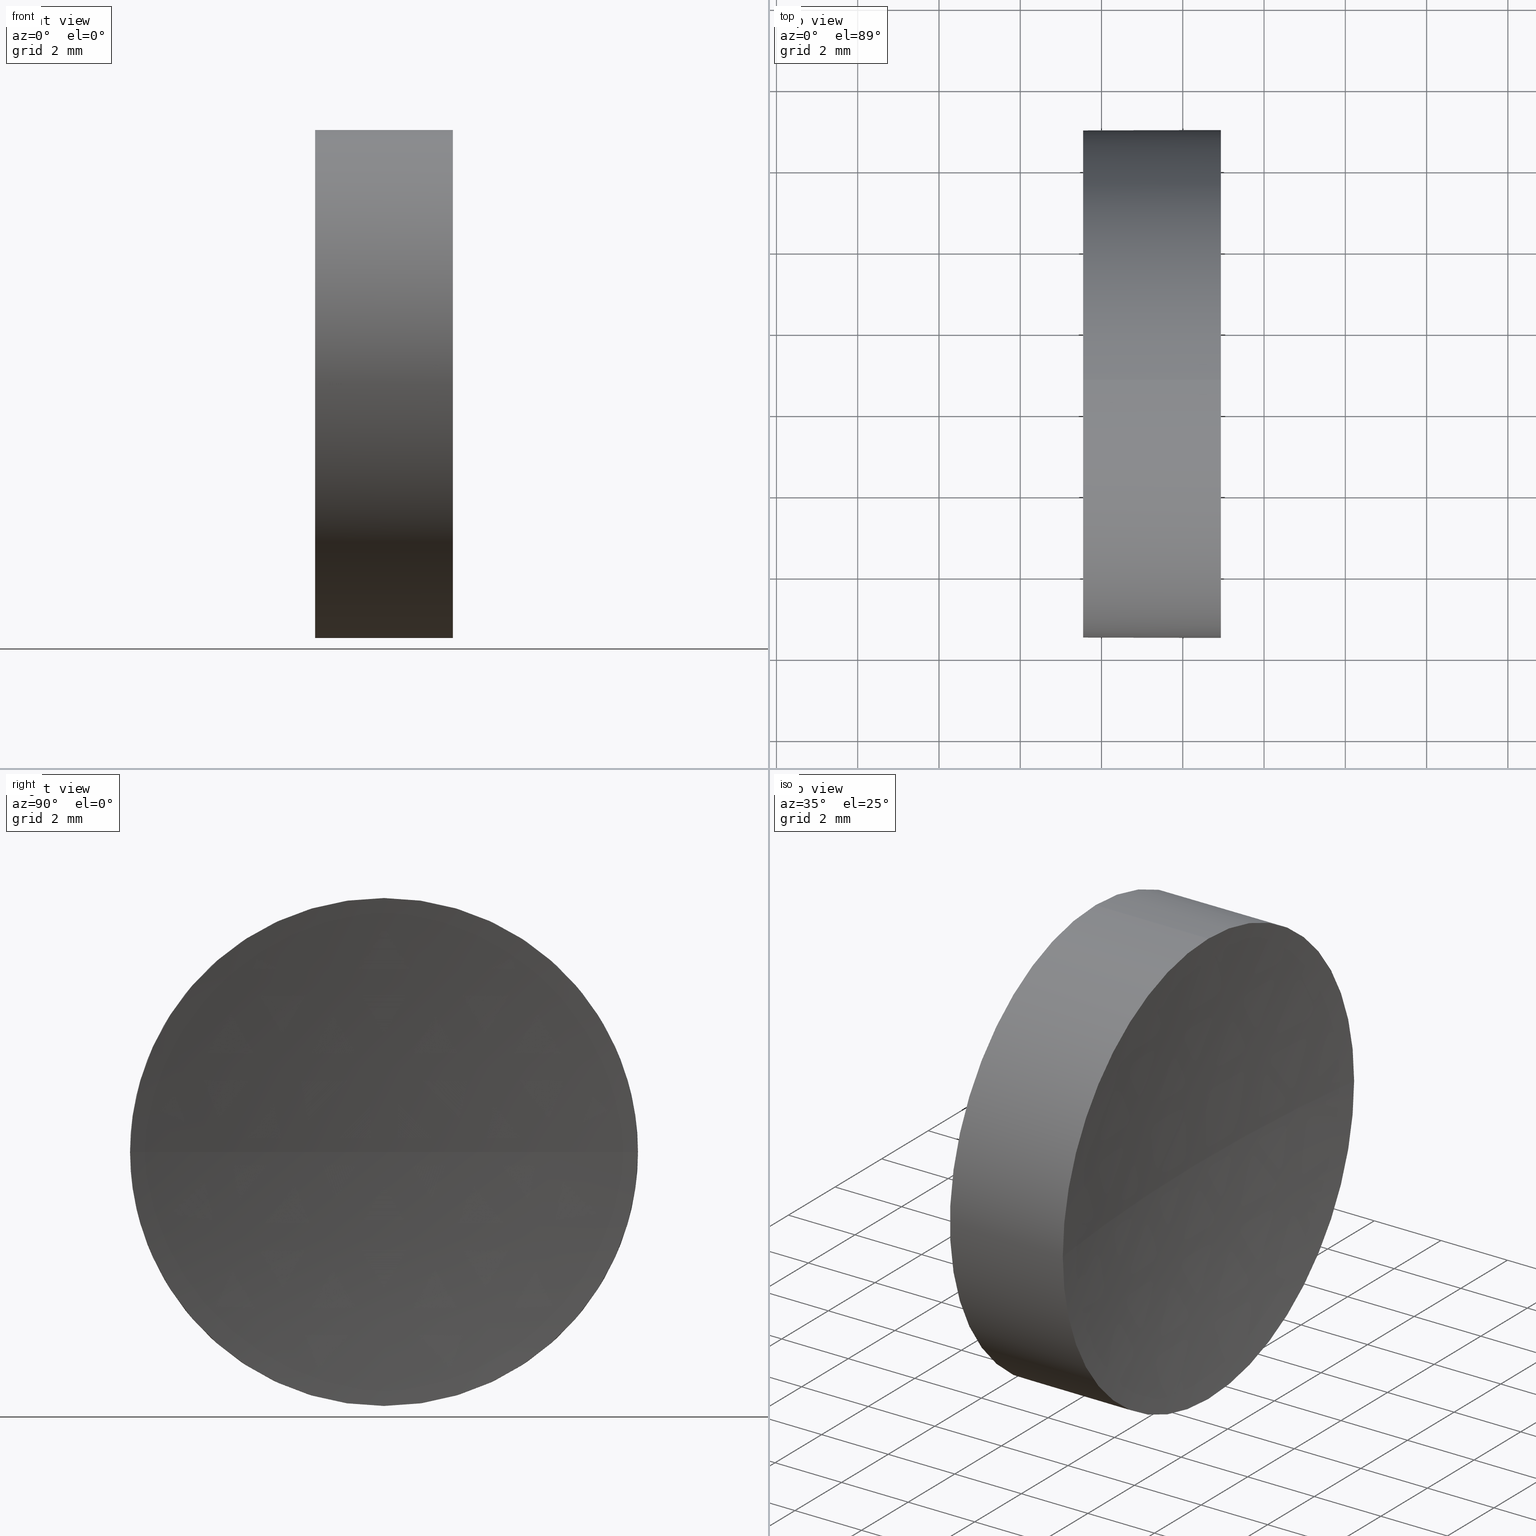
[diagram: canonical four-view strip — front | top / right | iso, engineering-drawing reading convention]
A machine part, canonical four-view strip (front | top / right | iso — engineering-drawing reading convention). The complete STEP part file that produces these views, byte-faithful:
ISO-10303-21;
HEADER;
FILE_DESCRIPTION (( 'STEP AP214' ),
    '1' );
FILE_NAME ('270004.STEP',
    '2019-07-22T02:27:28',
    ( '' ),
    ( '' ),
    'SwSTEP 2.0',
    'SolidWorks 2016',
    '' );
FILE_SCHEMA (( 'AUTOMOTIVE_DESIGN' ));
ENDSEC;

DATA;
#1 = CARTESIAN_POINT ( 'NONE',  ( 57.54632776745975800, 34.68901056168621700, 0.0000000000000000000 ) ) ;
#2 = CIRCLE ( 'NONE', #156, 6.250000000000005300 ) ;
#3 = APPLICATION_PROTOCOL_DEFINITION ( 'draft international standard', 'automotive_design', 1998, #41 ) ;
#4 = CIRCLE ( 'NONE', #84, 49.99999999999999300 ) ;
#5 = FACE_OUTER_BOUND ( 'NONE', #44, .T. ) ;
#6 = AXIS2_PLACEMENT_3D ( 'NONE', #70, #12, #141 ) ;
#7 = CARTESIAN_POINT ( 'NONE',  ( 57.54632776745975800, 34.68901056168621700, 6.249999999999998200 ) ) ;
#8 = VERTEX_POINT ( 'NONE', #180 ) ;
#9 = CARTESIAN_POINT ( 'NONE',  ( 60.93849051950596200, 40.93901056168623100, 7.654042494670954600E-016 ) ) ;
#10 = FILL_AREA_STYLE_COLOUR ( '', #131 ) ;
#11 = CARTESIAN_POINT ( 'NONE',  ( 0.0000000000000000000, 0.0000000000000000000, 0.0000000000000000000 ) ) ;
#12 = DIRECTION ( 'NONE',  ( 0.0000000000000000000, 0.0000000000000000000, 1.000000000000000000 ) ) ;
#13 = ORIENTED_EDGE ( 'NONE', *, *, #37, .F. ) ;
#14 = ORIENTED_EDGE ( 'NONE', *, *, #107, .T. ) ;
#15 = SURFACE_STYLE_FILL_AREA ( #126 ) ;
#16 = ORIENTED_EDGE ( 'NONE', *, *, #105, .T. ) ;
#17 = ORIENTED_EDGE ( 'NONE', *, *, #37, .T. ) ;
#18 = EDGE_CURVE ( 'NONE', #78, #8, #68, .T. ) ;
#19 = DIRECTION ( 'NONE',  ( 0.0000000000000000000, -1.000000000000000000, -1.224646799147353200E-016 ) ) ;
#20 = ORIENTED_EDGE ( 'NONE', *, *, #29, .T. ) ;
#21 = CARTESIAN_POINT ( 'NONE',  ( 57.54632776745975800, 34.68901056168621700, -6.249999999999998200 ) ) ;
#22 = DIRECTION ( 'NONE',  ( 0.0000000000000000000, 0.0000000000000000000, 1.000000000000000000 ) ) ;
#23 = DIRECTION ( 'NONE',  ( -1.000000000000000000, -0.0000000000000000000, -0.0000000000000000000 ) ) ;
#24 = AXIS2_PLACEMENT_3D ( 'NONE', #181, #152, #179 ) ;
#25 = DIRECTION ( 'NONE',  ( -1.000000000000000000, -0.0000000000000000000, -0.0000000000000000000 ) ) ;
#26 = DIRECTION ( 'NONE',  ( -1.000000000000000000, -0.0000000000000000000, -0.0000000000000000000 ) ) ;
#27 = COLOUR_RGB ( '',1.000000000000000000, 1.000000000000000000, 1.000000000000000000 ) ;
#28 = EDGE_LOOP ( 'NONE', ( #58, #91, #139, #57 ) ) ;
#29 = EDGE_CURVE ( 'NONE', #104, #31, #90, .T. ) ;
#30 = EDGE_CURVE ( 'NONE', #78, #94, #138, .T. ) ;
#31 = VERTEX_POINT ( 'NONE', #21 ) ;
#32 = ORIENTED_EDGE ( 'NONE', *, *, #30, .F. ) ;
#33 = AXIS2_PLACEMENT_3D ( 'NONE', #86, #25, #55 ) ;
#34 = CARTESIAN_POINT ( 'NONE',  ( 54.49257150108255100, 34.68901056168621700, 6.250000000000001800 ) ) ;
#35 = CARTESIAN_POINT ( 'NONE',  ( 54.49257150108255100, 34.68901056168621700, -6.250000000000001800 ) ) ;
#36 =( LENGTH_UNIT ( ) NAMED_UNIT ( * ) SI_UNIT ( .MILLI., .METRE. ) );
#37 = EDGE_CURVE ( 'NONE', #94, #66, #168, .T. ) ;
#38 = DIRECTION ( 'NONE',  ( -1.000000000000000000, -0.0000000000000000000, -0.0000000000000000000 ) ) ;
#39 = CIRCLE ( 'NONE', #45, 6.249999999999998200 ) ;
#40 = DIRECTION ( 'NONE',  ( 0.0000000000000000000, 0.0000000000000000000, 1.000000000000000000 ) ) ;
#41 = APPLICATION_CONTEXT ( 'automotive_design' ) ;
#42 = CIRCLE ( 'NONE', #33, 6.250000000000005300 ) ;
#43 = PRODUCT_CONTEXT ( 'NONE', #53, 'mechanical' ) ;
#44 = EDGE_LOOP ( 'NONE', ( #167, #162, #32, #134 ) ) ;
#45 = AXIS2_PLACEMENT_3D ( 'NONE', #158, #69, #22 ) ;
#46 = CARTESIAN_POINT ( 'NONE',  ( 110.5463276019670400, 34.68901056168623100, 0.0000000000000000000 ) ) ;
#47 = UNCERTAINTY_MEASURE_WITH_UNIT (LENGTH_MEASURE( 1.000000000000000100E-005 ), #73, 'distance_accuracy_value', 'NONE');
#48 = VERTEX_POINT ( 'NONE', #9 ) ;
#49 = STYLED_ITEM ( 'NONE', ( #178 ), #59 ) ;
#50 = EDGE_LOOP ( 'NONE', ( #155, #101, #135, #17, #124 ) ) ;
#51 = CARTESIAN_POINT ( 'NONE',  ( 110.5463276019670400, 34.68901056168623100, 0.0000000000000000000 ) ) ;
#52 = DIRECTION ( 'NONE',  ( 0.0000000000000000000, 0.0000000000000000000, 1.000000000000000000 ) ) ;
#53 = APPLICATION_CONTEXT ( 'automotive_design' ) ;
#54 =( GEOMETRIC_REPRESENTATION_CONTEXT ( 3 ) GLOBAL_UNCERTAINTY_ASSIGNED_CONTEXT ( ( #76 ) ) GLOBAL_UNIT_ASSIGNED_CONTEXT ( ( #74, #186, #185 ) ) REPRESENTATION_CONTEXT ( 'NONE', 'WORKASPACE' ) );
#55 = DIRECTION ( 'NONE',  ( 0.0000000000000000000, 0.0000000000000000000, 1.000000000000000000 ) ) ;
#56 = CARTESIAN_POINT ( 'NONE',  ( 60.93849051950596200, 34.68901056168621700, 6.250000000000004400 ) ) ;
#57 = ORIENTED_EDGE ( 'NONE', *, *, #114, .F. ) ;
#58 = ORIENTED_EDGE ( 'NONE', *, *, #96, .F. ) ;
#59 = MANIFOLD_SOLID_BREP ( '��ת1', #64 ) ;
#60 = EDGE_CURVE ( 'NONE', #48, #8, #4, .T. ) ;
#61 = ADVANCED_FACE ( 'NONE', ( #122 ), #154, .F. ) ;
#62 = MECHANICAL_DESIGN_GEOMETRIC_PRESENTATION_REPRESENTATION (  '', ( #49 ), #120 ) ;
#63 = SPHERICAL_SURFACE ( 'NONE', #165, 49.99999999999999300 ) ;
#64 = CLOSED_SHELL ( 'NONE', ( #147, #77, #164, #102, #61 ) ) ;
#65 = STYLED_ITEM ( 'NONE', ( #115 ), #132 ) ;
#66 = VERTEX_POINT ( 'NONE', #7 ) ;
#67 = PRODUCT_DEFINITION_CONTEXT ( 'detailed design', #41, 'design' ) ;
#68 = CIRCLE ( 'NONE', #133, 49.99999999999999300 ) ;
#69 = DIRECTION ( 'NONE',  ( -1.000000000000000000, -0.0000000000000000000, -0.0000000000000000000 ) ) ;
#70 = CARTESIAN_POINT ( 'NONE',  ( 110.5463276019670400, 34.68901056168623100, 0.0000000000000000000 ) ) ;
#71 = CARTESIAN_POINT ( 'NONE',  ( 54.49257150108255100, 34.68901056168621700, 0.0000000000000000000 ) ) ;
#72 = FACE_OUTER_BOUND ( 'NONE', #28, .T. ) ;
#73 =( LENGTH_UNIT ( ) NAMED_UNIT ( * ) SI_UNIT ( .MILLI., .METRE. ) );
#74 =( LENGTH_UNIT ( ) NAMED_UNIT ( * ) SI_UNIT ( .MILLI., .METRE. ) );
#75 = AXIS2_PLACEMENT_3D ( 'NONE', #11, #40, #129 ) ;
#76 = UNCERTAINTY_MEASURE_WITH_UNIT (LENGTH_MEASURE( 1.000000000000000100E-005 ), #74, 'distance_accuracy_value', 'NONE');
#77 = ADVANCED_FACE ( 'NONE', ( #72 ), #166, .F. ) ;
#78 = VERTEX_POINT ( 'NONE', #140 ) ;
#79 = SURFACE_STYLE_USAGE ( .BOTH. , #85 ) ;
#80 = FILL_AREA_STYLE_COLOUR ( '', #27 ) ;
#81 =( GEOMETRIC_REPRESENTATION_CONTEXT ( 3 ) GLOBAL_UNCERTAINTY_ASSIGNED_CONTEXT ( ( #47 ) ) GLOBAL_UNIT_ASSIGNED_CONTEXT ( ( #73, #174, #88 ) ) REPRESENTATION_CONTEXT ( 'NONE', 'WORKASPACE' ) );
#82 =( NAMED_UNIT ( * ) SI_UNIT ( $, .STERADIAN. ) SOLID_ANGLE_UNIT ( ) );
#83 = ORIENTED_EDGE ( 'NONE', *, *, #96, .T. ) ;
#84 = AXIS2_PLACEMENT_3D ( 'NONE', #46, #92, #19 ) ;
#85 = SURFACE_SIDE_STYLE ('',( #149 ) ) ;
#86 = CARTESIAN_POINT ( 'NONE',  ( 60.93849051950596200, 34.68901056168621700, 0.0000000000000000000 ) ) ;
#87 = DIRECTION ( 'NONE',  ( 0.0000000000000000000, 0.0000000000000000000, 1.000000000000000000 ) ) ;
#88 =( NAMED_UNIT ( * ) SI_UNIT ( $, .STERADIAN. ) SOLID_ANGLE_UNIT ( ) );
#89 = CIRCLE ( 'NONE', #117, 6.249999999999998200 ) ;
#90 = LINE ( 'NONE', #35, #116 ) ;
#91 = ORIENTED_EDGE ( 'NONE', *, *, #60, .T. ) ;
#92 = DIRECTION ( 'NONE',  ( 0.0000000000000000000, -1.224646799147353200E-016, 1.000000000000000000 ) ) ;
#93 = CARTESIAN_POINT ( 'NONE',  ( 57.54632776745975800, 34.68901056168621700, 0.0000000000000000000 ) ) ;
#94 = VERTEX_POINT ( 'NONE', #56 ) ;
#95 = DIRECTION ( 'NONE',  ( -1.000000000000000000, -0.0000000000000000000, -0.0000000000000000000 ) ) ;
#96 = EDGE_CURVE ( 'NONE', #48, #104, #2, .T. ) ;
#97 = CARTESIAN_POINT ( 'NONE',  ( 110.5463276019670400, 34.68901056168623100, 0.0000000000000000000 ) ) ;
#98 = SURFACE_STYLE_USAGE ( .BOTH. , #173 ) ;
#99 = DIRECTION ( 'NONE',  ( 0.0000000000000000000, 0.0000000000000000000, 1.000000000000000000 ) ) ;
#100 = FACE_OUTER_BOUND ( 'NONE', #118, .T. ) ;
#101 = ORIENTED_EDGE ( 'NONE', *, *, #114, .T. ) ;
#102 = ADVANCED_FACE ( 'NONE', ( #161 ), #110, .T. ) ;
#103 = EDGE_LOOP ( 'NONE', ( #16, #175 ) ) ;
#104 = VERTEX_POINT ( 'NONE', #183 ) ;
#105 = EDGE_CURVE ( 'NONE', #66, #31, #89, .T. ) ;
#106 = FILL_AREA_STYLE ('',( #80 ) ) ;
#107 = EDGE_CURVE ( 'NONE', #94, #48, #42, .T. ) ;
#108 = DIRECTION ( 'NONE',  ( -1.000000000000000000, -0.0000000000000000000, -0.0000000000000000000 ) ) ;
#109 = MECHANICAL_DESIGN_GEOMETRIC_PRESENTATION_REPRESENTATION (  '', ( #65 ), #81 ) ;
#110 = CYLINDRICAL_SURFACE ( 'NONE', #148, 6.250000000000001800 ) ;
#111 = CARTESIAN_POINT ( 'NONE',  ( 60.93849051950596200, 34.68901056168621700, 0.0000000000000000000 ) ) ;
#112 = DIRECTION ( 'NONE',  ( 0.0000000000000000000, -1.000000000000000000, 0.0000000000000000000 ) ) ;
#113 = CYLINDRICAL_SURFACE ( 'NONE', #151, 6.250000000000001800 ) ;
#114 = EDGE_CURVE ( 'NONE', #104, #78, #146, .T. ) ;
#115 = PRESENTATION_STYLE_ASSIGNMENT (( #98 ) ) ;
#116 = VECTOR ( 'NONE', #137, 1000.000000000000000 ) ;
#117 = AXIS2_PLACEMENT_3D ( 'NONE', #1, #171, #99 ) ;
#118 = EDGE_LOOP ( 'NONE', ( #83, #20, #144, #13, #14 ) ) ;
#119 = PRODUCT_DEFINITION_SHAPE ( 'NONE', 'NONE',  #170 ) ;
#120 =( GEOMETRIC_REPRESENTATION_CONTEXT ( 3 ) GLOBAL_UNCERTAINTY_ASSIGNED_CONTEXT ( ( #177 ) ) GLOBAL_UNIT_ASSIGNED_CONTEXT ( ( #36, #169, #82 ) ) REPRESENTATION_CONTEXT ( 'NONE', 'WORKASPACE' ) );
#121 = DIRECTION ( 'NONE',  ( 1.000000000000000000, 0.0000000000000000000, 0.0000000000000000000 ) ) ;
#122 = FACE_OUTER_BOUND ( 'NONE', #103, .T. ) ;
#123 = CARTESIAN_POINT ( 'NONE',  ( 54.49257150108255100, 34.68901056168621700, 0.0000000000000000000 ) ) ;
#124 = ORIENTED_EDGE ( 'NONE', *, *, #145, .F. ) ;
#125 = PRESENTATION_LAYER_ASSIGNMENT (  '', '', ( #49 ) ) ;
#126 = FILL_AREA_STYLE ('',( #10 ) ) ;
#127 = PRODUCT_DEFINITION_FORMATION_WITH_SPECIFIED_SOURCE ( '�κ�', '', #159, .NOT_KNOWN. ) ;
#128 = VECTOR ( 'NONE', #108, 1000.000000000000000 ) ;
#129 = DIRECTION ( 'NONE',  ( 1.000000000000000000, 0.0000000000000000000, 0.0000000000000000000 ) ) ;
#130 = PRESENTATION_LAYER_ASSIGNMENT (  '', '', ( #65 ) ) ;
#131 = COLOUR_RGB ( '',1.000000000000000000, 1.000000000000000000, 1.000000000000000000 ) ;
#132 = ADVANCED_BREP_SHAPE_REPRESENTATION ( '270004', ( #59, #75 ), #54 ) ;
#133 = AXIS2_PLACEMENT_3D ( 'NONE', #51, #153, #150 ) ;
#134 = ORIENTED_EDGE ( 'NONE', *, *, #18, .T. ) ;
#135 = ORIENTED_EDGE ( 'NONE', *, *, #30, .T. ) ;
#136 = DIRECTION ( 'NONE',  ( 0.0000000000000000000, 0.0000000000000000000, -1.000000000000000000 ) ) ;
#137 = DIRECTION ( 'NONE',  ( -1.000000000000000000, -0.0000000000000000000, -0.0000000000000000000 ) ) ;
#138 = CIRCLE ( 'NONE', #24, 6.250000000000005300 ) ;
#139 = ORIENTED_EDGE ( 'NONE', *, *, #18, .F. ) ;
#140 = CARTESIAN_POINT ( 'NONE',  ( 60.93849051950596200, 28.43901056168622100, 0.0000000000000000000 ) ) ;
#141 = DIRECTION ( 'NONE',  ( 0.0000000000000000000, -1.000000000000000000, 0.0000000000000000000 ) ) ;
#142 = DIRECTION ( 'NONE',  ( 0.0000000000000000000, 0.0000000000000000000, 1.000000000000000000 ) ) ;
#143 = AXIS2_PLACEMENT_3D ( 'NONE', #111, #26, #172 ) ;
#144 = ORIENTED_EDGE ( 'NONE', *, *, #105, .F. ) ;
#145 = EDGE_CURVE ( 'NONE', #31, #66, #39, .T. ) ;
#146 = CIRCLE ( 'NONE', #143, 6.250000000000005300 ) ;
#147 = ADVANCED_FACE ( 'NONE', ( #100 ), #113, .T. ) ;
#148 = AXIS2_PLACEMENT_3D ( 'NONE', #71, #23, #52 ) ;
#149 = SURFACE_STYLE_FILL_AREA ( #106 ) ;
#150 = DIRECTION ( 'NONE',  ( -1.000000000000000000, 0.0000000000000000000, 0.0000000000000000000 ) ) ;
#151 = AXIS2_PLACEMENT_3D ( 'NONE', #123, #95, #87 ) ;
#152 = DIRECTION ( 'NONE',  ( -1.000000000000000000, -0.0000000000000000000, -0.0000000000000000000 ) ) ;
#153 = DIRECTION ( 'NONE',  ( 0.0000000000000000000, 0.0000000000000000000, -1.000000000000000000 ) ) ;
#154 = PLANE ( 'NONE',  #184 ) ;
#155 = ORIENTED_EDGE ( 'NONE', *, *, #29, .F. ) ;
#156 = AXIS2_PLACEMENT_3D ( 'NONE', #182, #38, #176 ) ;
#157 = APPLICATION_PROTOCOL_DEFINITION ( 'draft international standard', 'automotive_design', 1998, #53 ) ;
#158 = CARTESIAN_POINT ( 'NONE',  ( 57.54632776745975800, 34.68901056168621700, 0.0000000000000000000 ) ) ;
#159 = PRODUCT ( '270004', '270004', '', ( #43 ) ) ;
#160 = SHAPE_DEFINITION_REPRESENTATION ( #119, #132 ) ;
#161 = FACE_OUTER_BOUND ( 'NONE', #50, .T. ) ;
#162 = ORIENTED_EDGE ( 'NONE', *, *, #107, .F. ) ;
#163 = PRODUCT_RELATED_PRODUCT_CATEGORY ( 'part', '', ( #159 ) ) ;
#164 = ADVANCED_FACE ( 'NONE', ( #5 ), #63, .F. ) ;
#165 = AXIS2_PLACEMENT_3D ( 'NONE', #97, #142, #112 ) ;
#166 = SPHERICAL_SURFACE ( 'NONE', #6, 49.99999999999999300 ) ;
#167 = ORIENTED_EDGE ( 'NONE', *, *, #60, .F. ) ;
#168 = LINE ( 'NONE', #34, #128 ) ;
#169 =( NAMED_UNIT ( * ) PLANE_ANGLE_UNIT ( ) SI_UNIT ( $, .RADIAN. ) );
#170 = PRODUCT_DEFINITION ( 'δ֪', '', #127, #67 ) ;
#171 = DIRECTION ( 'NONE',  ( -1.000000000000000000, -0.0000000000000000000, -0.0000000000000000000 ) ) ;
#172 = DIRECTION ( 'NONE',  ( 0.0000000000000000000, 0.0000000000000000000, 1.000000000000000000 ) ) ;
#173 = SURFACE_SIDE_STYLE ('',( #15 ) ) ;
#174 =( NAMED_UNIT ( * ) PLANE_ANGLE_UNIT ( ) SI_UNIT ( $, .RADIAN. ) );
#175 = ORIENTED_EDGE ( 'NONE', *, *, #145, .T. ) ;
#176 = DIRECTION ( 'NONE',  ( 0.0000000000000000000, 0.0000000000000000000, 1.000000000000000000 ) ) ;
#177 = UNCERTAINTY_MEASURE_WITH_UNIT (LENGTH_MEASURE( 1.000000000000000100E-005 ), #36, 'distance_accuracy_value', 'NONE');
#178 = PRESENTATION_STYLE_ASSIGNMENT (( #79 ) ) ;
#179 = DIRECTION ( 'NONE',  ( 0.0000000000000000000, 0.0000000000000000000, 1.000000000000000000 ) ) ;
#180 = CARTESIAN_POINT ( 'NONE',  ( 60.54632760196703600, 34.68901056168623100, 0.0000000000000000000 ) ) ;
#181 = CARTESIAN_POINT ( 'NONE',  ( 60.93849051950596200, 34.68901056168621700, 0.0000000000000000000 ) ) ;
#182 = CARTESIAN_POINT ( 'NONE',  ( 60.93849051950596200, 34.68901056168621700, 0.0000000000000000000 ) ) ;
#183 = CARTESIAN_POINT ( 'NONE',  ( 60.93849051950596200, 34.68901056168621700, -6.250000000000004400 ) ) ;
#184 = AXIS2_PLACEMENT_3D ( 'NONE', #93, #121, #136 ) ;
#185 =( NAMED_UNIT ( * ) SI_UNIT ( $, .STERADIAN. ) SOLID_ANGLE_UNIT ( ) );
#186 =( NAMED_UNIT ( * ) PLANE_ANGLE_UNIT ( ) SI_UNIT ( $, .RADIAN. ) );
ENDSEC;
END-ISO-10303-21;
